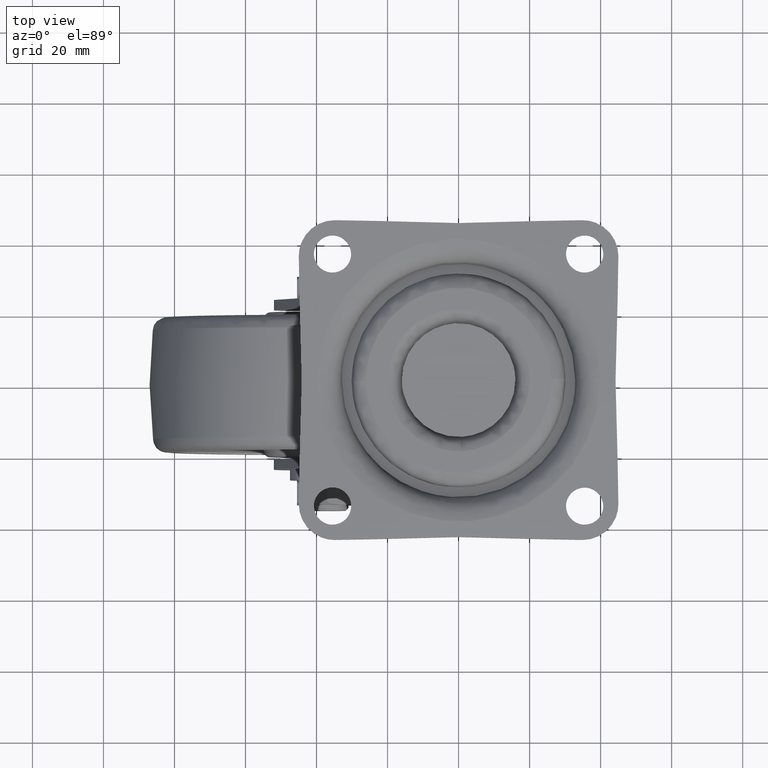
[diagram: clean part render]
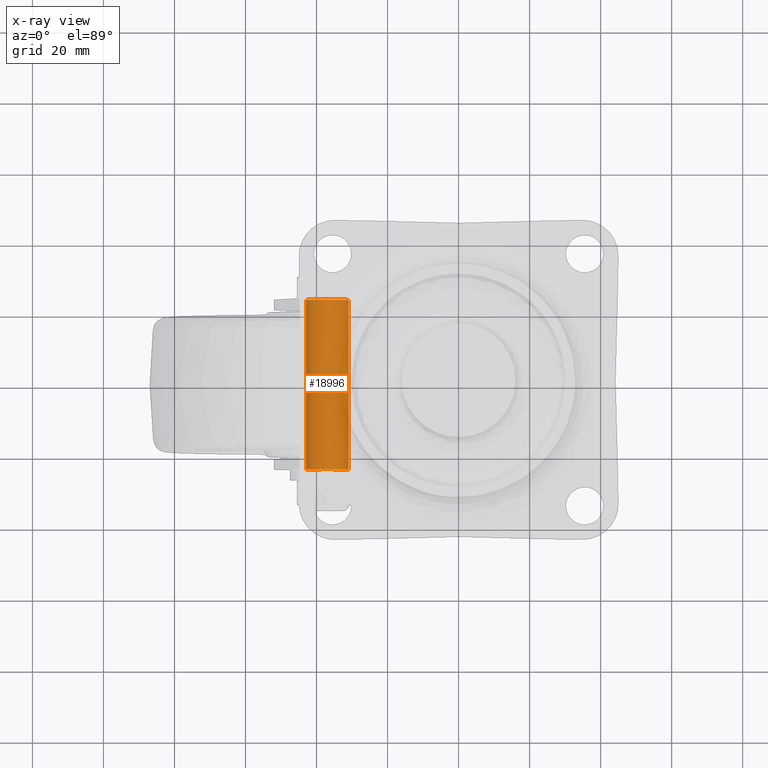
[diagram: x-ray — body ghosted, one internal face saturated and labeled with its STEP entity id]
A machine part, top view, then the same camera in x-ray: the body is ghosted and one INTERNAL B-rep face — a face not visible from any outside direction — is saturated and labeled: STEP entity #18996.
In plain terms, the highlighted face is a freeform B-spline surface patch.
Its self-contained STEP definition (entity closure, byte-faithful):
#18688=CARTESIAN_POINT('',(-42.988808790513033,23.899999999999999,-80.366291237506147));
#18689=VERTEX_POINT('',#18688);
#18703=CARTESIAN_POINT('',(-37.0,23.899999999999999,-74.0));
#18704=VERTEX_POINT('',#18703);
#18705=CARTESIAN_POINT('',(-42.988808790513040,23.900000000000006,-80.366291237506147));
#18706=CARTESIAN_POINT('',(-43.0,23.900000000000002,-80.183316579940453));
#18707=CARTESIAN_POINT('',(-43.0,23.899999999999999,-80.0));
#18708=CARTESIAN_POINT('',(-42.999999999999993,23.899999999999991,-74.0));
#18709=CARTESIAN_POINT('',(-37.0,23.899999999999999,-74.0));
#18717=(BOUNDED_CURVE()B_SPLINE_CURVE(2,(#18705,#18706,#18707,#18708,#18709),.UNSPECIFIED.,.F.,.U.)B_SPLINE_CURVE_WITH_KNOTS((3,2,3),(0.739332962233411,0.750000000000000,1.0),.UNSPECIFIED.)CURVE()GEOMETRIC_REPRESENTATION_ITEM()RATIONAL_B_SPLINE_CURVE((0.976072041654862,0.987502787893356,1.0,0.707106781186548,1.0))REPRESENTATION_ITEM(''));
#18718=EDGE_CURVE('',#18689,#18704,#18717,.T.);
#18720=CARTESIAN_POINT('',(-31.011191209486960,23.899999999999999,-79.633708762493853));
#18721=VERTEX_POINT('',#18720);
#18722=CARTESIAN_POINT('',(-37.0,23.899999999999999,-74.0));
#18723=CARTESIAN_POINT('',(-31.355763598846259,23.900000000000002,-74.0));
#18724=CARTESIAN_POINT('',(-31.011191209486963,23.900000000000002,-79.633708762493868));
#18732=(BOUNDED_CURVE()B_SPLINE_CURVE(2,(#18722,#18723,#18724),.UNSPECIFIED.,.F.,.U.)B_SPLINE_CURVE_WITH_KNOTS((3,3),(0.0,0.239332962233411),.UNSPECIFIED.)CURVE()GEOMETRIC_REPRESENTATION_ITEM()RATIONAL_B_SPLINE_CURVE((1.0,0.719603993293191,0.976072041654863))REPRESENTATION_ITEM(''));
#18733=EDGE_CURVE('',#18704,#18721,#18732,.T.);
#18894=CARTESIAN_POINT('',(-31.011191209486960,-23.899999999999999,-79.633708762493868));
#18895=VERTEX_POINT('',#18894);
#18896=CARTESIAN_POINT('',(-31.011191209486960,-23.899999999999999,-79.633708762493868));
#18897=CARTESIAN_POINT('',(-31.011191209486960,23.899999999999999,-79.633708762493853));
#18898=QUASI_UNIFORM_CURVE('',1,(#18896,#18897),.UNSPECIFIED.,.F.,.U.);
#18899=EDGE_CURVE('',#18895,#18721,#18898,.T.);
#18918=CARTESIAN_POINT('',(-42.988808790513033,-23.899999999999999,-80.366291237506147));
#18919=VERTEX_POINT('',#18918);
#18933=CARTESIAN_POINT('',(-42.988808790513033,-23.899999999999999,-80.366291237506147));
#18934=CARTESIAN_POINT('',(-42.988808790513033,23.899999999999999,-80.366291237506147));
#18935=QUASI_UNIFORM_CURVE('',1,(#18933,#18934),.UNSPECIFIED.,.F.,.U.);
#18936=EDGE_CURVE('',#18919,#18689,#18935,.T.);
#18942=CARTESIAN_POINT('',(-42.988808790531202,-25.095000000000010,-80.366291237209140));
#18943=CARTESIAN_POINT('',(-43.355100027740342,-25.095000000000010,-74.377482446677945));
#18944=CARTESIAN_POINT('',(-37.366291237209140,-25.095000000000010,-74.011191209468805));
#18945=CARTESIAN_POINT('',(-31.377482446677949,-25.095000000000010,-73.644899972259665));
#18946=CARTESIAN_POINT('',(-31.011191209468802,-25.095000000000010,-79.633708762790860));
#18947=CARTESIAN_POINT('',(-42.988808790531202,25.124875000000010,-80.366291237209140));
#18948=CARTESIAN_POINT('',(-43.355100027740342,25.124874999999999,-74.377482446677945));
#18949=CARTESIAN_POINT('',(-37.366291237209140,25.124875000000010,-74.011191209468805));
#18950=CARTESIAN_POINT('',(-31.377482446677949,25.124874999999999,-73.644899972259665));
#18951=CARTESIAN_POINT('',(-31.011191209468802,25.124875000000010,-79.633708762790860));
#18959=(BOUNDED_SURFACE()B_SPLINE_SURFACE(2,1,((#18942,#18947),(#18943,#18948),(#18944,#18949),(#18945,#18950),(#18946,#18951)),.UNSPECIFIED.,.F.,.F.,.U.)B_SPLINE_SURFACE_WITH_KNOTS((3,2,3),(2,2),(0.0,9.941125496954292,19.882250993908588),(0.0,50.219875000000023),.UNSPECIFIED.)GEOMETRIC_REPRESENTATION_ITEM()RATIONAL_B_SPLINE_SURFACE(((1.0,1.0),(0.707106781186548,0.707106781186548),(1.0,1.0),(0.707106781186548,0.707106781186548),(1.0,1.0)))REPRESENTATION_ITEM('')SURFACE());
#18960=ORIENTED_EDGE('',*,*,#18733,.F.);
#18961=ORIENTED_EDGE('',*,*,#18718,.F.);
#18962=ORIENTED_EDGE('',*,*,#18936,.F.);
#18963=CARTESIAN_POINT('',(-37.0,-23.899999999999999,-74.0));
#18964=VERTEX_POINT('',#18963);
#18965=CARTESIAN_POINT('',(-42.988808790513040,-23.899999999999999,-80.366291237506147));
#18966=CARTESIAN_POINT('',(-43.0,-23.899999999999999,-80.183316579940467));
#18967=CARTESIAN_POINT('',(-43.0,-23.899999999999999,-80.0));
#18968=CARTESIAN_POINT('',(-42.999999999999993,-23.899999999999991,-74.0));
#18969=CARTESIAN_POINT('',(-37.0,-23.899999999999999,-74.0));
#18977=(BOUNDED_CURVE()B_SPLINE_CURVE(2,(#18965,#18966,#18967,#18968,#18969),.UNSPECIFIED.,.F.,.U.)B_SPLINE_CURVE_WITH_KNOTS((3,2,3),(0.739332962233411,0.750000000000000,1.0),.UNSPECIFIED.)CURVE()GEOMETRIC_REPRESENTATION_ITEM()RATIONAL_B_SPLINE_CURVE((0.976072041654862,0.987502787893357,1.0,0.707106781186548,1.0))REPRESENTATION_ITEM(''));
#18978=EDGE_CURVE('',#18919,#18964,#18977,.T.);
#18979=ORIENTED_EDGE('',*,*,#18978,.T.);
#18980=CARTESIAN_POINT('',(-37.0,-23.899999999999999,-74.0));
#18981=CARTESIAN_POINT('',(-31.355763598846266,-23.900000000000006,-74.0));
#18982=CARTESIAN_POINT('',(-31.011191209486970,-23.899999999999999,-79.633708762493868));
#18990=(BOUNDED_CURVE()B_SPLINE_CURVE(2,(#18980,#18981,#18982),.UNSPECIFIED.,.F.,.U.)B_SPLINE_CURVE_WITH_KNOTS((3,3),(0.0,0.239332962233411),.UNSPECIFIED.)CURVE()GEOMETRIC_REPRESENTATION_ITEM()RATIONAL_B_SPLINE_CURVE((1.0,0.719603993293191,0.976072041654863))REPRESENTATION_ITEM(''));
#18991=EDGE_CURVE('',#18964,#18895,#18990,.T.);
#18992=ORIENTED_EDGE('',*,*,#18991,.T.);
#18993=ORIENTED_EDGE('',*,*,#18899,.T.);
#18994=EDGE_LOOP('',(#18960,#18961,#18962,#18979,#18992,#18993));
#18995=FACE_OUTER_BOUND('',#18994,.T.);
#18996=ADVANCED_FACE('',(#18995),#18959,.T.);